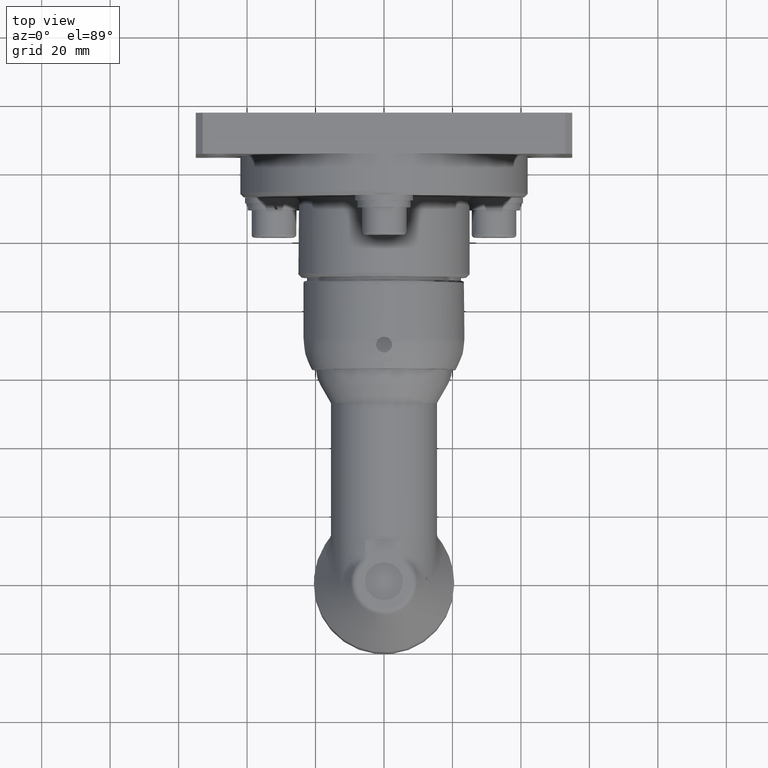
[diagram: clean part render]
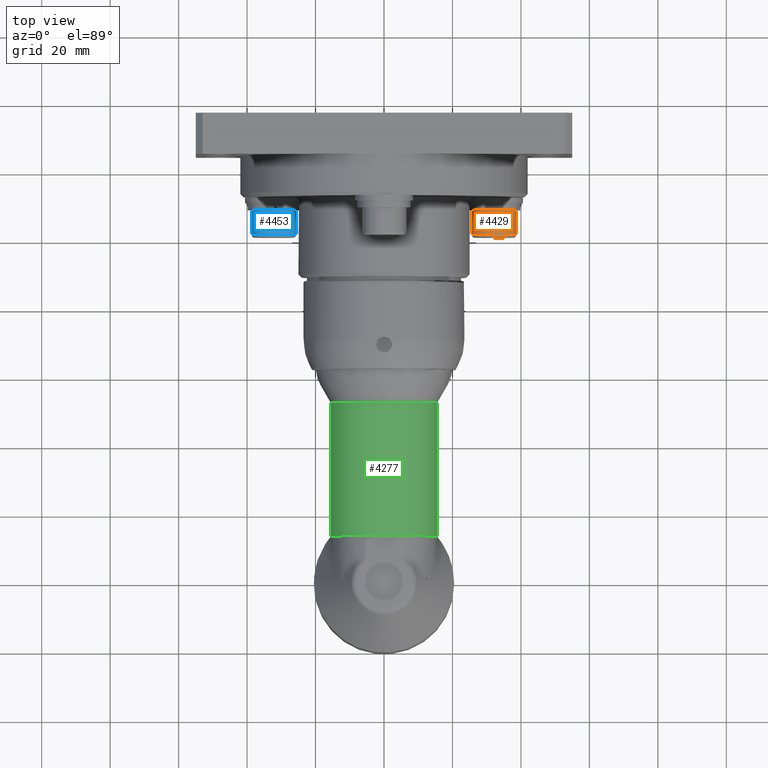
[diagram: same view with three faces highlighted in distinct colors, each labeled with its STEP entity id]
A machine part, top view with three faces highlighted in distinct colors.
Their STEP definitions:

[orange] entity #4429 — the highlighted cylindrical surface (bore or boss wall) has radius 6.5 mm, axis along (0, 1, -0).
#338=LINE('',#8949,#545);
#545=VECTOR('',#6265,6.5);
#653=CYLINDRICAL_SURFACE('',#4991,6.5);
#911=FACE_OUTER_BOUND('',#1206,.T.);
#1206=EDGE_LOOP('',(#3837,#3838,#3839,#3840,#3841,#3842,#3843,#3844));
#1565=CIRCLE('',#4992,6.5);
#1566=CIRCLE('',#4993,6.5);
#1567=CIRCLE('',#4994,6.5);
#1568=CIRCLE('',#4995,6.5);
#1569=CIRCLE('',#4996,6.5);
#1570=CIRCLE('',#4997,6.5);
#2013=VERTEX_POINT('',#8942);
#2014=VERTEX_POINT('',#8943);
#2015=VERTEX_POINT('',#8945);
#2016=VERTEX_POINT('',#8948);
#2017=VERTEX_POINT('',#8950);
#2018=VERTEX_POINT('',#8952);
#2645=EDGE_CURVE('',#2013,#2014,#1565,.T.);
#2646=EDGE_CURVE('',#2015,#2013,#1566,.T.);
#2647=EDGE_CURVE('',#2014,#2015,#1567,.T.);
#2648=EDGE_CURVE('',#2014,#2016,#338,.T.);
#2649=EDGE_CURVE('',#2017,#2016,#1568,.T.);
#2650=EDGE_CURVE('',#2018,#2017,#1569,.T.);
#2651=EDGE_CURVE('',#2016,#2018,#1570,.T.);
#3837=ORIENTED_EDGE('',*,*,#2645,.F.);
#3838=ORIENTED_EDGE('',*,*,#2646,.F.);
#3839=ORIENTED_EDGE('',*,*,#2647,.F.);
#3840=ORIENTED_EDGE('',*,*,#2648,.T.);
#3841=ORIENTED_EDGE('',*,*,#2649,.F.);
#3842=ORIENTED_EDGE('',*,*,#2650,.F.);
#3843=ORIENTED_EDGE('',*,*,#2651,.F.);
#3844=ORIENTED_EDGE('',*,*,#2648,.F.);
#4429=ADVANCED_FACE('',(#911),#653,.T.);
#4991=AXIS2_PLACEMENT_3D('',#8941,#6257,#6258);
#4992=AXIS2_PLACEMENT_3D('',#8944,#6259,#6260);
#4993=AXIS2_PLACEMENT_3D('',#8946,#6261,#6262);
#4994=AXIS2_PLACEMENT_3D('',#8947,#6263,#6264);
#4995=AXIS2_PLACEMENT_3D('',#8951,#6266,#6267);
#4996=AXIS2_PLACEMENT_3D('',#8953,#6268,#6269);
#4997=AXIS2_PLACEMENT_3D('',#8954,#6270,#6271);
#6257=DIRECTION('center_axis',(2.21929747786554E-14,1.,-1.88434337276347E-15));
#6258=DIRECTION('ref_axis',(1.,-1.08599117800846E-14,-1.76491446194806E-15));
#6259=DIRECTION('center_axis',(2.21929747786554E-14,1.,-1.88434337276347E-15));
#6260=DIRECTION('ref_axis',(1.,-1.08599117800846E-14,-1.76491446194806E-15));
#6261=DIRECTION('center_axis',(2.21929747786554E-14,1.,-1.88434337276347E-15));
#6262=DIRECTION('ref_axis',(1.,-1.08599117800846E-14,-1.76491446194806E-15));
#6263=DIRECTION('center_axis',(2.21929747786554E-14,1.,-1.88434337276347E-15));
#6264=DIRECTION('ref_axis',(1.,-1.08599117800846E-14,-1.76491446194806E-15));
#6265=DIRECTION('',(-2.21929747786554E-14,-1.,1.88434337276347E-15));
#6266=DIRECTION('center_axis',(-2.21929747786554E-14,-1.,1.88434337276347E-15));
#6267=DIRECTION('ref_axis',(-1.,2.21938068413892E-14,1.64244978203331E-15));
#6268=DIRECTION('center_axis',(-2.21929747786554E-14,-1.,1.88434337276347E-15));
#6269=DIRECTION('ref_axis',(-1.,2.21938068413892E-14,1.64244978203331E-15));
#6270=DIRECTION('center_axis',(-2.21929747786554E-14,-1.,1.88434337276347E-15));
#6271=DIRECTION('ref_axis',(-1.,2.21938068413892E-14,1.64244978203331E-15));
#8941=CARTESIAN_POINT('Origin',(32.1476315703767,104.9,-11.0693172515435));
#8942=CARTESIAN_POINT('',(31.0196911018443,108.9,-17.4707038434818));
#8943=CARTESIAN_POINT('',(25.6476315703768,108.9,-11.0693172515435));
#8944=CARTESIAN_POINT('Origin',(32.1476315703768,108.9,-11.0693172515435));
#8945=CARTESIAN_POINT('',(31.8196911018443,108.9,-17.5610392918884));
#8946=CARTESIAN_POINT('Origin',(32.1476315703768,108.9,-11.0693172515435));
#8947=CARTESIAN_POINT('Origin',(32.1476315703768,108.9,-11.0693172515435));
#8948=CARTESIAN_POINT('',(25.6476315703766,101.7,-11.0693172515435));
#8949=CARTESIAN_POINT('',(25.6476315703767,104.9,-11.0693172515435));
#8950=CARTESIAN_POINT('',(38.6476315703766,101.699999999999,-11.0693172515435));
#8951=CARTESIAN_POINT('Origin',(32.1476315703766,101.7,-11.0693172515435));
#8952=CARTESIAN_POINT('',(32.1476315703766,101.7,-17.5693172515435));
#8953=CARTESIAN_POINT('Origin',(32.1476315703766,101.7,-11.0693172515435));
#8954=CARTESIAN_POINT('Origin',(32.1476315703766,101.7,-11.0693172515435));

[blue] entity #4453 — the highlighted cylindrical surface (bore or boss wall) has radius 6.5 mm, axis along (-0, 1, -0).
#362=LINE('',#9101,#569);
#569=VECTOR('',#6395,6.5);
#658=CYLINDRICAL_SURFACE('',#5044,6.5);
#935=FACE_OUTER_BOUND('',#1232,.T.);
#1232=EDGE_LOOP('',(#3969,#3970,#3971,#3972,#3973,#3974,#3975,#3976));
#1590=CIRCLE('',#5045,6.5);
#1591=CIRCLE('',#5046,6.5);
#1592=CIRCLE('',#5047,6.5);
#1593=CIRCLE('',#5048,6.5);
#1594=CIRCLE('',#5049,6.5);
#1595=CIRCLE('',#5050,6.5);
#2051=VERTEX_POINT('',#9094);
#2052=VERTEX_POINT('',#9095);
#2053=VERTEX_POINT('',#9097);
#2054=VERTEX_POINT('',#9100);
#2055=VERTEX_POINT('',#9102);
#2056=VERTEX_POINT('',#9104);
#2706=EDGE_CURVE('',#2051,#2052,#1590,.T.);
#2707=EDGE_CURVE('',#2053,#2051,#1591,.T.);
#2708=EDGE_CURVE('',#2052,#2053,#1592,.T.);
#2709=EDGE_CURVE('',#2052,#2054,#362,.T.);
#2710=EDGE_CURVE('',#2055,#2054,#1593,.T.);
#2711=EDGE_CURVE('',#2056,#2055,#1594,.T.);
#2712=EDGE_CURVE('',#2054,#2056,#1595,.T.);
#3969=ORIENTED_EDGE('',*,*,#2706,.F.);
#3970=ORIENTED_EDGE('',*,*,#2707,.F.);
#3971=ORIENTED_EDGE('',*,*,#2708,.F.);
#3972=ORIENTED_EDGE('',*,*,#2709,.T.);
#3973=ORIENTED_EDGE('',*,*,#2710,.F.);
#3974=ORIENTED_EDGE('',*,*,#2711,.F.);
#3975=ORIENTED_EDGE('',*,*,#2712,.F.);
#3976=ORIENTED_EDGE('',*,*,#2709,.F.);
#4453=ADVANCED_FACE('',(#935),#658,.T.);
#5044=AXIS2_PLACEMENT_3D('',#9093,#6387,#6388);
#5045=AXIS2_PLACEMENT_3D('',#9096,#6389,#6390);
#5046=AXIS2_PLACEMENT_3D('',#9098,#6391,#6392);
#5047=AXIS2_PLACEMENT_3D('',#9099,#6393,#6394);
#5048=AXIS2_PLACEMENT_3D('',#9103,#6396,#6397);
#5049=AXIS2_PLACEMENT_3D('',#9105,#6398,#6399);
#5050=AXIS2_PLACEMENT_3D('',#9106,#6400,#6401);
#6387=DIRECTION('center_axis',(-2.31409413410956E-14,1.,-1.88434337276339E-15));
#6388=DIRECTION('ref_axis',(-1.,-1.18078783425247E-14,1.76491446194801E-15));
#6389=DIRECTION('center_axis',(-2.31409413410956E-14,1.,-1.88434337276339E-15));
#6390=DIRECTION('ref_axis',(-1.,-1.18078783425247E-14,1.76491446194801E-15));
#6391=DIRECTION('center_axis',(-2.31409413410956E-14,1.,-1.88434337276339E-15));
#6392=DIRECTION('ref_axis',(-1.,-1.18078783425247E-14,1.76491446194801E-15));
#6393=DIRECTION('center_axis',(-2.31409413410956E-14,1.,-1.88434337276339E-15));
#6394=DIRECTION('ref_axis',(-1.,-1.18078783425247E-14,1.76491446194801E-15));
#6395=DIRECTION('',(2.31409413410956E-14,-1.,1.88434337276339E-15));
#6396=DIRECTION('center_axis',(2.31409413410956E-14,-1.,1.88434337276339E-15));
#6397=DIRECTION('ref_axis',(1.,2.31417734038293E-14,-1.6424497820333E-15));
#6398=DIRECTION('center_axis',(2.31409413410956E-14,-1.,1.88434337276339E-15));
#6399=DIRECTION('ref_axis',(1.,2.31417734038293E-14,-1.6424497820333E-15));
#6400=DIRECTION('center_axis',(2.31409413410956E-14,-1.,1.88434337276339E-15));
#6401=DIRECTION('ref_axis',(1.,2.31417734038293E-14,-1.6424497820333E-15));
#9093=CARTESIAN_POINT('Origin',(-32.1476315703767,104.9,-11.0693172515435));
#9094=CARTESIAN_POINT('',(-31.0196911018444,108.9,-4.66793065960526));
#9095=CARTESIAN_POINT('',(-25.6476315703768,108.9,-11.0693172515435));
#9096=CARTESIAN_POINT('Origin',(-32.1476315703768,108.9,-11.0693172515435));
#9097=CARTESIAN_POINT('',(-31.8196911018444,108.9,-4.5775952111987));
#9098=CARTESIAN_POINT('Origin',(-32.1476315703768,108.9,-11.0693172515435));
#9099=CARTESIAN_POINT('Origin',(-32.1476315703768,108.9,-11.0693172515435));
#9100=CARTESIAN_POINT('',(-25.6476315703767,101.7,-11.0693172515435));
#9101=CARTESIAN_POINT('',(-25.6476315703767,104.9,-11.0693172515435));
#9102=CARTESIAN_POINT('',(-38.6476315703766,101.699999999999,-11.0693172515435));
#9103=CARTESIAN_POINT('Origin',(-32.1476315703766,101.7,-11.0693172515435));
#9104=CARTESIAN_POINT('',(-32.1476315703766,101.7,-4.56931725154351));
#9105=CARTESIAN_POINT('Origin',(-32.1476315703766,101.7,-11.0693172515435));
#9106=CARTESIAN_POINT('Origin',(-32.1476315703766,101.7,-11.0693172515435));

[green] entity #4277 — the highlighted cylindrical surface (bore or boss wall) has radius 15.5 mm, axis along (0, 1, -0).
#84=B_SPLINE_CURVE_WITH_KNOTS('',3,(#7111,#7112,#7113,#7114,#7115,#7116,
#7117,#7118,#7119,#7120,#7121,#7122,#7123,#7124),.UNSPECIFIED.,.F.,.F.,
(4,1,1,1,1,1,1,1,1,1,1,4),(8.78352203489889,9.18559205532005,9.58766207574121,
10.3918021165835,11.1959421574258,11.598012177847,12.0000821982681,12.8042222391105,
13.6083622799528,13.7088797850581,14.0104323003739,14.4125023207951),
 .UNSPECIFIED.);
#87=B_SPLINE_CURVE_WITH_KNOTS('',3,(#7174,#7175,#7176,#7177),
 .UNSPECIFIED.,.F.,.F.,(4,4),(3.0412432024023,3.04169260766847),
 .UNSPECIFIED.);
#88=B_SPLINE_CURVE_WITH_KNOTS('',3,(#7178,#7179,#7180,#7181),
 .UNSPECIFIED.,.F.,.F.,(4,4),(2.94400328787464,3.0412432024023),
 .UNSPECIFIED.);
#89=B_SPLINE_CURVE_WITH_KNOTS('',3,(#7183,#7184,#7185,#7186),
 .UNSPECIFIED.,.F.,.F.,(4,4),(0.000449405266987265,0.0976893196726122),
 .UNSPECIFIED.);
#90=B_SPLINE_CURVE_WITH_KNOTS('',3,(#7188,#7189,#7190,#7191),
 .UNSPECIFIED.,.F.,.F.,(4,4),(2.94509625678813E-13,0.000449405266987332),
 .UNSPECIFIED.);
#205=LINE('',#7170,#412);
#412=VECTOR('',#5362,15.5);
#598=CYLINDRICAL_SURFACE('',#4607,15.5);
#759=FACE_OUTER_BOUND('',#1016,.T.);
#1016=EDGE_LOOP('',(#2974,#2975,#2976,#2977,#2978,#2979,#2980,#2981,#2982,
#2983,#2984));
#1328=CIRCLE('',#4608,15.5);
#1329=CIRCLE('',#4609,15.5);
#1330=CIRCLE('',#4610,15.5);
#1331=CIRCLE('',#4611,15.5);
#1713=VERTEX_POINT('',#7081);
#1714=VERTEX_POINT('',#7110);
#1716=VERTEX_POINT('',#7165);
#1717=VERTEX_POINT('',#7166);
#1718=VERTEX_POINT('',#7169);
#1719=VERTEX_POINT('',#7171);
#1720=VERTEX_POINT('',#7173);
#1721=VERTEX_POINT('',#7182);
#1722=VERTEX_POINT('',#7187);
#2200=EDGE_CURVE('',#1713,#1714,#84,.T.);
#2203=EDGE_CURVE('',#1716,#1717,#1328,.T.);
#2204=EDGE_CURVE('',#1717,#1716,#1329,.T.);
#2205=EDGE_CURVE('',#1717,#1718,#205,.T.);
#2206=EDGE_CURVE('',#1718,#1719,#1330,.T.);
#2207=EDGE_CURVE('',#1720,#1719,#87,.T.);
#2208=EDGE_CURVE('',#1714,#1720,#88,.T.);
#2209=EDGE_CURVE('',#1721,#1713,#89,.T.);
#2210=EDGE_CURVE('',#1722,#1721,#90,.T.);
#2211=EDGE_CURVE('',#1722,#1718,#1331,.T.);
#2974=ORIENTED_EDGE('',*,*,#2203,.F.);
#2975=ORIENTED_EDGE('',*,*,#2204,.F.);
#2976=ORIENTED_EDGE('',*,*,#2205,.T.);
#2977=ORIENTED_EDGE('',*,*,#2206,.T.);
#2978=ORIENTED_EDGE('',*,*,#2207,.F.);
#2979=ORIENTED_EDGE('',*,*,#2208,.F.);
#2980=ORIENTED_EDGE('',*,*,#2200,.F.);
#2981=ORIENTED_EDGE('',*,*,#2209,.F.);
#2982=ORIENTED_EDGE('',*,*,#2210,.F.);
#2983=ORIENTED_EDGE('',*,*,#2211,.T.);
#2984=ORIENTED_EDGE('',*,*,#2205,.F.);
#4277=ADVANCED_FACE('',(#759),#598,.T.);
#4607=AXIS2_PLACEMENT_3D('',#7164,#5356,#5357);
#4608=AXIS2_PLACEMENT_3D('',#7167,#5358,#5359);
#4609=AXIS2_PLACEMENT_3D('',#7168,#5360,#5361);
#4610=AXIS2_PLACEMENT_3D('',#7172,#5363,#5364);
#4611=AXIS2_PLACEMENT_3D('',#7192,#5365,#5366);
#5356=DIRECTION('center_axis',(5.47997460687507E-16,1.,-1.08159064247537E-30));
#5357=DIRECTION('ref_axis',(-1.,6.70462140602243E-16,-2.39031970244941E-15));
#5358=DIRECTION('center_axis',(5.47997460687507E-16,1.,-1.08159064247537E-30));
#5359=DIRECTION('ref_axis',(1.,-5.47997460687507E-16,2.39031970244941E-15));
#5360=DIRECTION('center_axis',(5.47997460687507E-16,1.,-1.08159064247537E-30));
#5361=DIRECTION('ref_axis',(1.,-5.47997460687507E-16,2.39031970244941E-15));
#5362=DIRECTION('',(-5.47997460687507E-16,-1.,1.08159064247537E-30));
#5363=DIRECTION('center_axis',(5.47997460687507E-16,1.,-1.08159064247537E-30));
#5364=DIRECTION('ref_axis',(1.,-5.47997460687507E-16,2.39031970244941E-15));
#5365=DIRECTION('center_axis',(5.47997460687507E-16,1.,-1.08159064247537E-30));
#5366=DIRECTION('ref_axis',(1.,-5.47997460687507E-16,2.39031970244941E-15));
#7081=CARTESIAN_POINT('',(-15.4817254347922,14.1676291020645,-0.752447713603467));
#7110=CARTESIAN_POINT('',(15.4817254347922,14.1676291020645,-0.752447713603438));
#7111=CARTESIAN_POINT('Ctrl Pts',(-15.4817254347922,14.1676291020645,-0.752447713603465));
#7112=CARTESIAN_POINT('Ctrl Pts',(-15.4241938989829,14.2477675359594,-1.93616775838476));
#7113=CARTESIAN_POINT('Ctrl Pts',(-15.0377353141027,14.7962007724269,-4.26123775671474));
#7114=CARTESIAN_POINT('Ctrl Pts',(-13.3553301868313,16.8226935881598,-8.35792318993098));
#7115=CARTESIAN_POINT('Ctrl Pts',(-9.92421903520833,19.9059800444086,-12.4991545163155));
#7116=CARTESIAN_POINT('Ctrl Pts',(-4.75508785661888,22.1327516580864,-15.0847064876614));
#7117=CARTESIAN_POINT('Ctrl Pts',(-0.000225172681667476,22.6229160698484,
-15.6387918514561));
#7118=CARTESIAN_POINT('Ctrl Pts',(4.75791615404779,22.1328543898303,-15.0841904176475));
#7119=CARTESIAN_POINT('Ctrl Pts',(9.92303071094927,19.9048238894428,-12.5015029877213));
#7120=CARTESIAN_POINT('Ctrl Pts',(12.8392257318069,17.2854297713372,-8.97770342565045));
#7121=CARTESIAN_POINT('Ctrl Pts',(14.3038184603219,15.6820657181624,-6.05534471977155));
#7122=CARTESIAN_POINT('Ctrl Pts',(15.0805687146311,14.7303218359874,-3.96781573312543));
#7123=CARTESIAN_POINT('Ctrl Pts',(15.4241994616043,14.2477597875173,-1.93605330660815));
#7124=CARTESIAN_POINT('Ctrl Pts',(15.4817254347922,14.1676291020645,-0.752447713603459));
#7164=CARTESIAN_POINT('Origin',(1.80278517638839E-14,32.8976921558478,-3.55818359948003E-29));
#7165=CARTESIAN_POINT('',(-15.5,52.3789764466969,-3.70499553879659E-14));
#7166=CARTESIAN_POINT('',(15.5,52.3789764466969,3.51517528492874E-14));
#7167=CARTESIAN_POINT('Origin',(2.87035460862007E-14,52.3789764466969,-5.66526107871851E-29));
#7168=CARTESIAN_POINT('Origin',(2.87035460862007E-14,52.3789764466969,-5.66526107871851E-29));
#7169=CARTESIAN_POINT('',(15.5,13.4164078649987,3.51517528492875E-14));
#7170=CARTESIAN_POINT('',(15.5,32.8976921558478,3.51517528492874E-14));
#7171=CARTESIAN_POINT('',(15.4970463504962,13.4164078650049,-0.302579593779646));
#7172=CARTESIAN_POINT('Origin',(7.35215744156721E-15,13.4164078649987,-1.45110612024156E-29));
#7173=CARTESIAN_POINT('',(15.4970058238226,13.41986626224,-0.304648151820118));
#7174=CARTESIAN_POINT('Ctrl Pts',(15.4970058238325,13.41986626224,-0.304648151820314));
#7175=CARTESIAN_POINT('Ctrl Pts',(15.4970193787892,13.4187134668528,-0.303958630669252));
#7176=CARTESIAN_POINT('Ctrl Pts',(15.4970328876764,13.4175606677623,-0.303269111337189));
#7177=CARTESIAN_POINT('Ctrl Pts',(15.4970463504953,13.4164078649707,-0.302579593828167));
#7178=CARTESIAN_POINT('Ctrl Pts',(15.4817255104655,14.1676293385222,-0.752447432934787));
#7179=CARTESIAN_POINT('Ctrl Pts',(15.4889830464026,13.9185643130075,-0.603123131843428));
#7180=CARTESIAN_POINT('Ctrl Pts',(15.4940728746054,13.6693019796719,-0.453843060845404));
#7181=CARTESIAN_POINT('Ctrl Pts',(15.4970058238335,13.4198662622818,-0.304648151772676));
#7182=CARTESIAN_POINT('',(-15.4970058238226,13.41986626224,-0.304648151820191));
#7183=CARTESIAN_POINT('Ctrl Pts',(-15.4970058238338,13.4198662622828,-0.304648151771657));
#7184=CARTESIAN_POINT('Ctrl Pts',(-15.4940728746571,13.6693019795042,-0.453843060499996));
#7185=CARTESIAN_POINT('Ctrl Pts',(-15.4889830516498,13.9185643282221,-0.603123114227131));
#7186=CARTESIAN_POINT('Ctrl Pts',(-15.4817255161955,14.1676293548416,-0.752447413588843));
#7187=CARTESIAN_POINT('',(-15.4970463504962,13.4164078650037,-0.302579593778305));
#7188=CARTESIAN_POINT('Ctrl Pts',(-15.4970463504963,13.416407865007,-0.302579593777312));
#7189=CARTESIAN_POINT('Ctrl Pts',(-15.4970328876774,13.4175606677999,-0.30326911128712));
#7190=CARTESIAN_POINT('Ctrl Pts',(-15.4970193787903,13.4187134668921,-0.303958630619603));
#7191=CARTESIAN_POINT('Ctrl Pts',(-15.4970058238338,13.4198662622812,-0.304648151770725));
#7192=CARTESIAN_POINT('Origin',(7.35215744156721E-15,13.4164078649987,-1.45110612024156E-29));